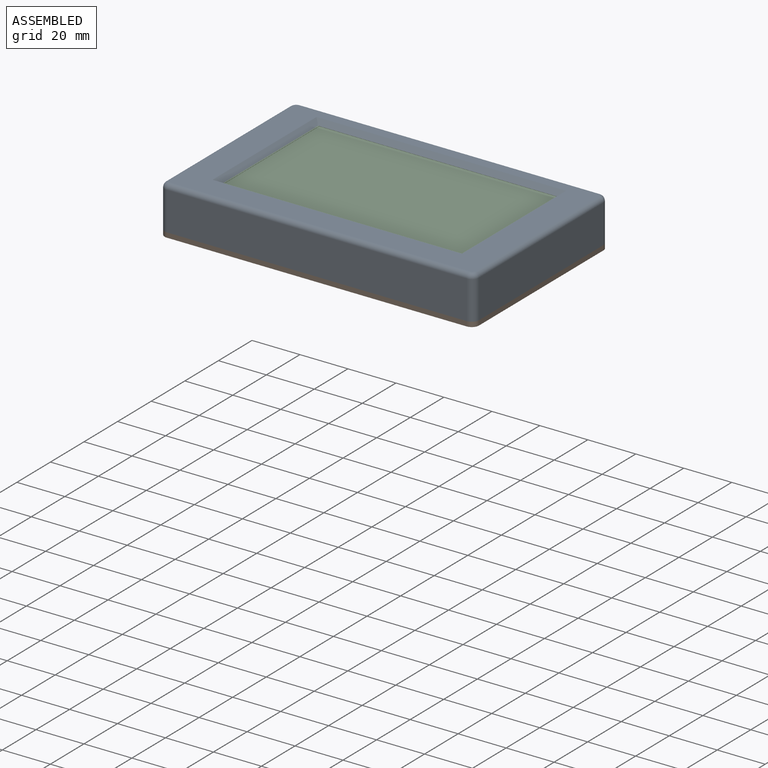
[diagram: assembled view]
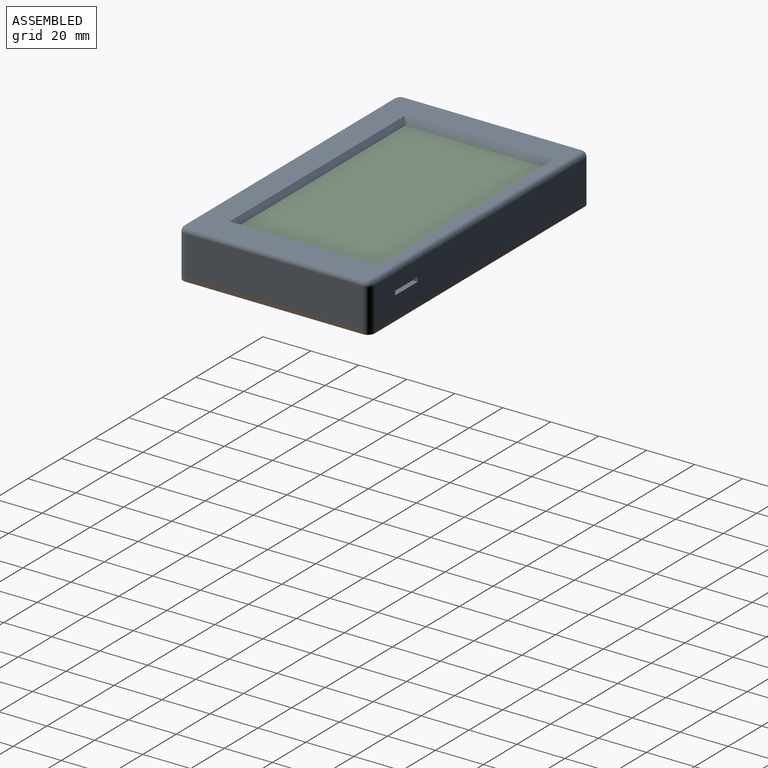
[diagram: assembled view, second angle]
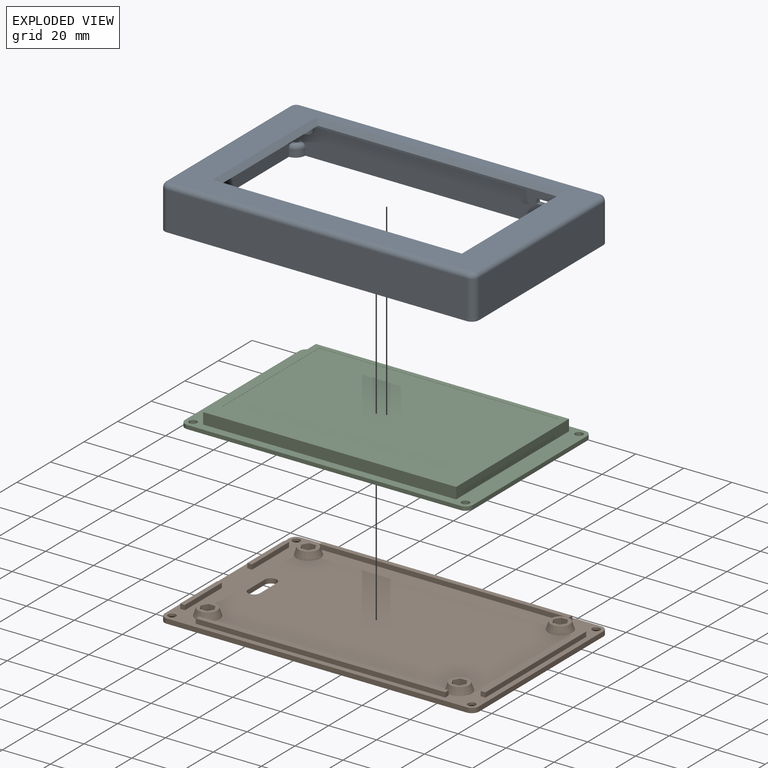
[diagram: exploded view]
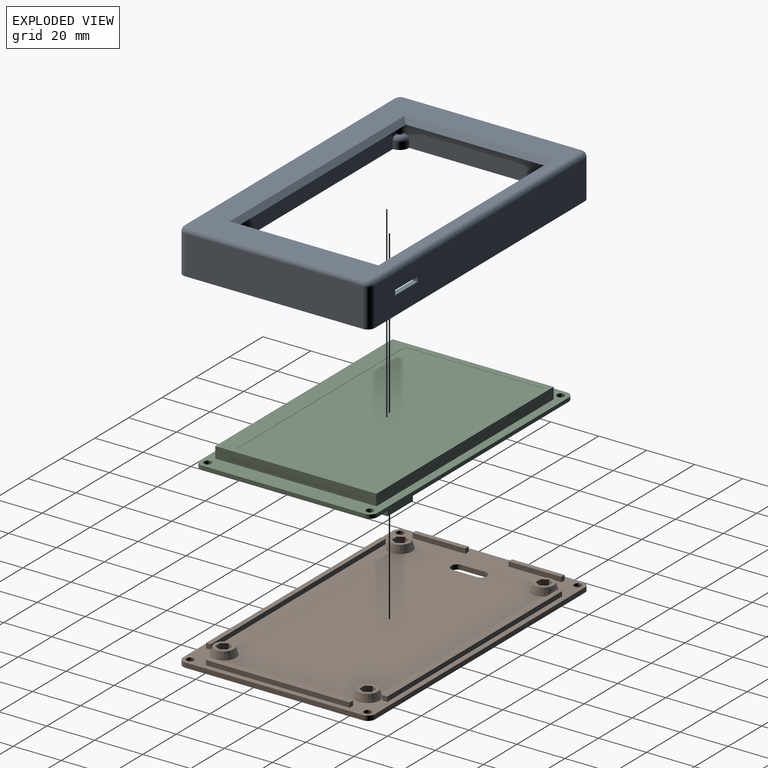
[diagram: exploded view, second angle]
ASSEMBLY  parts=3 mates=2
PART A: 82 faces, bbox 131x80x18 mm
  f0: plane 0.52x0.29mm, normal (0,0,1), area 0.1mm2, adj f67,f70,f81
  f1: plane 0.52x0.29mm, normal (0,0,1), area 0.1mm2, adj f66,f73,f75
  f2: plane 0.52x0.29mm, normal (0,0,1), area 0.1mm2, adj f69,f72,f77
  f3: plane 0.52x0.29mm, normal (0,0,1), area 0.1mm2, adj f68,f71,f79
  f4: plane 69.8x13mm, normal (-1,0,0), area 898.9mm2, adj f32,f45,f62,f64,f68,f69,f71,f72
  f5: plane 120.8x13mm, normal (0,1,0), area 1561.9mm2, adj f32,f45,f58,f64,f67,f68,f70,f71
  f6: plane 120.8x13mm, normal (0,-1,0), area 1534.9mm2, adj f32,f45,f46,f47,f48,f49,f60,f62
  f7: plane 69.8x13mm, normal (1,0,0), area 898.9mm2, adj f32,f45,f58,f60,f66,f67,f70,f73
  f8: plane 127x76mm, normal (0,0,1), area 3203.1mm2, adj f33,f34,f35,f36,f37,f38,f39,f40
  f9: plane 122.8x71.8mm, normal (0,0,-1), area 2943.3mm2, adj f11,f15,f19,f23,f26,f27,f28,f29
  f10: cylinder r=1mm len=4.7mm, axis (0,0,1), area 29.5mm2, adj f12,f13
  f11: cylinder r=2.5mm len=5mm, axis (0,0,1), area 73.8mm2, adj f9,f12
  f12: plane 5x5mm, normal (0,0,-1), area 16.5mm2, adj f10,f11
  f13: plane 2x2mm, normal (0,0,-1), area 3.1mm2, adj f10
  f14: cylinder r=1mm len=4.7mm, axis (0,0,1), area 29.5mm2, adj f16,f17
  f15: cylinder r=2.5mm len=5mm, axis (0,0,1), area 60.7mm2, adj f9,f16,f26,f29,f32
  f16: plane 5x5mm, normal (0,0,-1), area 16.5mm2, adj f14,f15
  f17: plane 2x2mm, normal (0,0,-1), area 3.1mm2, adj f14
  f18: cylinder r=1mm len=4.7mm, axis (0,0,1), area 29.5mm2, adj f20,f21
  f19: cylinder r=2.5mm len=5mm, axis (0,0,1), area 60.7mm2, adj f9,f20,f26,f27,f32
  f20: plane 5x5mm, normal (0,0,-1), area 16.5mm2, adj f18,f19
  f21: plane 2x2mm, normal (0,0,-1), area 3.1mm2, adj f18
  f22: cylinder r=1mm len=4.7mm, axis (0,0,1), area 29.5mm2, adj f24,f25
  f23: cylinder r=2.5mm len=5mm, axis (0,0,1), area 73.8mm2, adj f9,f24
  f24: plane 5x5mm, normal (0,0,-1), area 16.5mm2, adj f22,f23
  f25: plane 2x2mm, normal (0,0,-1), area 3.1mm2, adj f22
  f26: plane 109.76x3mm, normal (0,-1,0), area 329.3mm2, adj f9,f15,f19,f32
  f27: plane 3x2.18mm, normal (0,-1,0), area 6.5mm2, adj f9,f19,f30,f32
  f28: plane 71.8x3mm, normal (1,0,0), area 215.4mm2, adj f9,f29,f31,f32
  f29: plane 3.18x3mm, normal (0,-1,0), area 9.5mm2, adj f9,f15,f28,f32
  f30: plane 71.8x3mm, normal (-1,0,0), area 215.4mm2, adj f9,f27,f31,f32
  f31: plane 122.8x3mm, normal (0,1,0), area 368.4mm2, adj f9,f28,f30,f32
  f32: plane 126.8x75.8mm, normal (0,0,-1), area 781.9mm2, adj f4,f5,f6,f7,f15,f19,f26,f27
  f33: plane 62x2mm, normal (-0.71,0,0.71), area 169.7mm2, adj f8,f9,f34,f35
  f34: plane 104x2mm, normal (0,-0.71,0.71), area 288.5mm2, adj f8,f9,f33,f36
  f35: plane 104x2mm, normal (0,0.71,0.71), area 288.5mm2, adj f8,f9,f33,f36
  f36: plane 62x2mm, normal (0.71,0,0.71), area 169.7mm2, adj f8,f9,f34,f35
  f37: cylinder r=2mm len=125mm, axis (-1,0,0), area 392.7mm2, adj f8,f41,f51,f57
  f38: cylinder r=2mm len=74mm, axis (0,-1,0), area 232.5mm2, adj f8,f44,f51,f53
  f39: cylinder r=2mm len=74mm, axis (0,1,0), area 232.5mm2, adj f8,f42,f55,f57
  f40: cylinder r=2mm len=125mm, axis (1,0,0), area 392.7mm2, adj f8,f43,f53,f55
  f41: plane 125x16mm, normal (0,-1,0), area 2000mm2, adj f37,f45,f50,f56
  f42: plane 74x16mm, normal (-1,0,0), area 1184mm2, adj f39,f45,f54,f56
  f43: plane 125x16mm, normal (0,1,0), area 1973mm2, adj f40,f45,f46,f47,f48,f49,f52,f54
  f44: plane 74x16mm, normal (1,0,0), area 1184mm2, adj f38,f45,f50,f52
  f45: plane 131x80mm, normal (0,0,-1), area 898.5mm2, adj f4,f5,f6,f7,f41,f42,f43,f44
  f46: plane 2.1x2mm, normal (-1,0,0), area 4.2mm2, adj f6,f43,f47,f49
  f47: plane 13.5x2.1mm, normal (0,0,1), area 28.4mm2, adj f6,f43,f46,f48
  f48: plane 2.1x2mm, normal (1,0,0), area 4.2mm2, adj f6,f43,f47,f49
  f49: plane 13.5x2.1mm, normal (0,0,-1), area 28.4mm2, adj f6,f43,f46,f48
  f50: cylinder r=3mm len=16mm, axis (0,0,1), area 75.4mm2, adj f41,f44,f45,f51
  f51: torus R=1mm, axis (0,0,1), area 11.2mm2, adj f8,f37,f38,f50
  f52: cylinder r=3mm len=16mm, axis (0,0,-1), area 75.4mm2, adj f43,f44,f45,f53
  f53: torus R=1mm, axis (0,0,1), area 11.2mm2, adj f8,f38,f40,f52
  f54: cylinder r=3mm len=16mm, axis (0,0,1), area 75.4mm2, adj f42,f43,f45,f55
  f55: torus R=1mm, axis (0,0,1), area 11.2mm2, adj f8,f39,f40,f54
  f56: cylinder r=3mm len=16mm, axis (0,0,-1), area 75.4mm2, adj f41,f42,f45,f57
  f57: torus R=1mm, axis (0,0,1), area 11.2mm2, adj f8,f37,f39,f56
  f58: cylinder r=4mm len=4mm, axis (0,0,-1), area 18.8mm2, adj f5,f7,f45,f70
  f59: plane 0.52x0.29mm, normal (0,0,1), area 0.1mm2, adj f67,f70,f81
  f60: cylinder r=4mm len=4mm, axis (0,0,-1), area 18.8mm2, adj f6,f7,f45,f73
  f61: plane 0.52x0.29mm, normal (0,0,1), area 0.1mm2, adj f66,f73,f75
  f62: cylinder r=4mm len=4mm, axis (0,0,-1), area 18.8mm2, adj f4,f6,f45,f72
  f63: plane 0.52x0.29mm, normal (0,0,1), area 0.1mm2, adj f69,f72,f77
  f64: cylinder r=4mm len=4mm, axis (0,0,-1), area 18.8mm2, adj f4,f5,f45,f71
  f65: plane 0.52x0.29mm, normal (0,0,1), area 0.1mm2, adj f68,f71,f79
  f66: cylinder r=3mm len=8.27mm, axis (0,0,-1), area 37.9mm2, adj f1,f6,f7,f32,f61,f73,f74
  f67: cylinder r=3mm len=8.27mm, axis (0,0,1), area 37.9mm2, adj f0,f5,f7,f32,f59,f70,f80
  f68: cylinder r=3mm len=8.27mm, axis (0,0,-1), area 37.9mm2, adj f3,f4,f5,f32,f65,f71,f78
  f69: cylinder r=3mm len=8.27mm, axis (0,0,1), area 37.9mm2, adj f2,f4,f6,f32,f63,f72,f76
  f70: torus R=2mm, axis (0,0,-1), area 15.7mm2, adj f0,f5,f7,f58,f59,f67,f81
  f71: torus R=2mm, axis (0,0,-1), area 15.7mm2, adj f3,f4,f5,f64,f65,f68,f79
  f72: torus R=2mm, axis (0,0,-1), area 15.7mm2, adj f2,f4,f6,f62,f63,f69,f77
  f73: torus R=2mm, axis (0,0,-1), area 15.7mm2, adj f1,f6,f7,f60,f61,f66,f75
  f74: plane 1.8x1.8mm, normal (0,0,-1), area 1.6mm2, adj f66,f75
  f75: cylinder r=1mm len=5mm, axis (0,0,-1), area 31.4mm2, adj f1,f45,f61,f73,f74
  f76: plane 1.8x1.8mm, normal (0,0,-1), area 1.6mm2, adj f69,f77
  f77: cylinder r=1mm len=5mm, axis (0,0,-1), area 31.4mm2, adj f2,f45,f63,f72,f76
  f78: plane 1.8x1.8mm, normal (0,0,-1), area 1.6mm2, adj f68,f79
  f79: cylinder r=1mm len=5mm, axis (0,0,-1), area 31.4mm2, adj f3,f45,f65,f71,f78
  f80: plane 1.8x1.8mm, normal (0,0,-1), area 1.6mm2, adj f67,f81
  f81: cylinder r=1mm len=5mm, axis (0,0,-1), area 31.4mm2, adj f0,f45,f59,f70,f80
PART B: 87 faces, bbox 131x80x5 mm
  f0: plane 131x80mm, normal (0,0,1), area 9432.3mm2, adj f2,f3,f4,f5,f6,f7,f8,f9
  f1: plane 131x80mm, normal (0,0,-1), area 10279.2mm2, adj f2,f3,f4,f5,f6,f7,f8,f9
  f2: plane 74x2mm, normal (1,0,0), area 148mm2, adj f0,f1,f6,f9
  f3: plane 125x2mm, normal (0,1,0), area 250mm2, adj f0,f1,f6,f7
  f4: plane 74x2mm, normal (-1,0,0), area 148mm2, adj f0,f1,f7,f8
  f5: plane 125x2mm, normal (0,-1,0), area 250mm2, adj f0,f1,f8,f9
  f6: cylinder r=3mm len=3mm, axis (0,0,1), area 9.4mm2, adj f0,f1,f2,f3
  f7: cylinder r=3mm len=3mm, axis (0,0,-1), area 9.4mm2, adj f0,f1,f3,f4
  f8: cylinder r=3mm len=3mm, axis (0,0,1), area 9.4mm2, adj f0,f1,f4,f5
  f9: cylinder r=3mm len=3mm, axis (0,0,-1), area 9.4mm2, adj f0,f1,f2,f5
  f10: plane 10x2mm, normal (-1,0,0), area 20mm2, adj f0,f1,f11,f12
  f11: cylinder r=2.5mm len=5mm, axis (0,0,-1), area 15.7mm2, adj f0,f1,f10,f13
  f12: cylinder r=2.5mm len=5mm, axis (0,0,-1), area 15.7mm2, adj f0,f1,f10,f13
  f13: plane 10x2mm, normal (1,0,0), area 20mm2, adj f0,f1,f11,f12
  f14: cylinder r=1.6mm len=3.2mm, axis (0,0,-1), area 10.1mm2, adj f0,f44
  f15: cylinder r=1.6mm len=3.2mm, axis (0,0,-1), area 10.1mm2, adj f0,f43
  f16: cylinder r=1.6mm len=3.2mm, axis (0,0,-1), area 10.1mm2, adj f0,f46
  f17: cylinder r=1.6mm len=3.2mm, axis (0,0,-1), area 10.1mm2, adj f0,f45
  f18: plane 2x2mm, normal (0,-1,0), area 4mm2, adj f0,f19,f21,f22
  f19: plane 60x2mm, normal (1,0,0), area 120mm2, adj f0,f18,f20,f22
  f20: plane 2x2mm, normal (0,1,0), area 4mm2, adj f0,f19,f21,f22
  f21: plane 60x2mm, normal (-1,0,0), area 120mm2, adj f0,f18,f20,f22
  f22: plane 60x2mm, normal (0,0,1), area 120mm2, adj f18,f19,f20,f21
  f23: plane 22x2mm, normal (-1,0,0), area 44mm2, adj f0,f24,f26,f27
  f24: plane 2x2mm, normal (0,-1,0), area 4mm2, adj f0,f23,f25,f27
  f25: plane 22x2mm, normal (1,0,0), area 44mm2, adj f0,f24,f26,f27
  f26: plane 2x2mm, normal (0,1,0), area 4mm2, adj f0,f23,f25,f27
  f27: plane 22x2mm, normal (0,0,1), area 44mm2, adj f23,f24,f25,f26
  f28: plane 22x2mm, normal (-1,0,0), area 44mm2, adj f0,f29,f31,f32
  f29: plane 2x2mm, normal (0,-1,0), area 4mm2, adj f0,f28,f30,f32
  f30: plane 22x2mm, normal (1,0,0), area 44mm2, adj f0,f29,f31,f32
  f31: plane 2x2mm, normal (0,1,0), area 4mm2, adj f0,f28,f30,f32
  f32: plane 22x2mm, normal (0,0,1), area 44mm2, adj f28,f29,f30,f31
  f33: plane 104x2mm, normal (0,1,0), area 208mm2, adj f0,f34,f36,f37
  f34: plane 2x2mm, normal (-1,0,0), area 4mm2, adj f0,f33,f35,f37
  f35: plane 104x2mm, normal (0,-1,0), area 208mm2, adj f0,f34,f36,f37
  f36: plane 2x2mm, normal (1,0,0), area 4mm2, adj f0,f33,f35,f37
  f37: plane 104x2mm, normal (0,0,1), area 208mm2, adj f33,f34,f35,f36
  f38: plane 2x2mm, normal (-1,0,0), area 4mm2, adj f0,f39,f41,f42
  f39: plane 104x2mm, normal (0,-1,0), area 208mm2, adj f0,f38,f40,f42
  f40: plane 2x2mm, normal (1,0,0), area 4mm2, adj f0,f39,f41,f42
  f41: plane 104x2mm, normal (0,1,0), area 208mm2, adj f0,f38,f40,f42
  f42: plane 104x2mm, normal (0,0,1), area 208mm2, adj f38,f39,f40,f41
  f43: cone r=1.6mm half-angle=45deg, axis (0,0,-1), area 18.7mm2, adj f1,f15
  f44: cone r=1.6mm half-angle=45deg, axis (0,0,-1), area 18.7mm2, adj f1,f14
  f45: cone r=1.6mm half-angle=45deg, axis (0,0,-1), area 18.7mm2, adj f1,f17
  f46: cone r=1.6mm half-angle=45deg, axis (0,0,-1), area 18.7mm2, adj f1,f16
  f47: plane 3x2.89mm, normal (0,-1,0), area 8.7mm2, adj f48,f52,f53,f54
  f48: plane 3x2.5mm, normal (-0.87,-0.5,0), area 8.7mm2, adj f47,f49,f53,f54
  f49: plane 3x2.5mm, normal (-0.87,0.5,0), area 8.7mm2, adj f48,f50,f53,f54
  f50: plane 3x2.89mm, normal (0,1,0), area 8.7mm2, adj f49,f51,f53,f54
  f51: plane 3x2.5mm, normal (0.87,0.5,0), area 8.7mm2, adj f50,f52,f53,f54
  f52: plane 3x2.5mm, normal (0.87,-0.5,0), area 8.7mm2, adj f47,f51,f53,f54
  f53: plane 8x8mm, normal (0,0,1), area 28.6mm2, adj f47,f48,f49,f50,f51,f52,f85
  f54: plane 5.77x5mm, normal (0,0,1), area 12mm2, adj f47,f48,f49,f50,f51,f52,f79
  f55: plane 3x2.5mm, normal (0.87,-0.5,0), area 8.7mm2, adj f56,f60,f61,f62
  f56: plane 3x2.89mm, normal (0,-1,0), area 8.7mm2, adj f55,f57,f61,f62
  f57: plane 3x2.5mm, normal (-0.87,-0.5,0), area 8.7mm2, adj f56,f58,f61,f62
  f58: plane 3x2.5mm, normal (-0.87,0.5,0), area 8.7mm2, adj f57,f59,f61,f62
  f59: plane 3x2.89mm, normal (0,1,0), area 8.7mm2, adj f58,f60,f61,f62
  f60: plane 3x2.5mm, normal (0.87,0.5,0), area 8.7mm2, adj f55,f59,f61,f62
  f61: plane 8x8mm, normal (0,0,1), area 28.6mm2, adj f55,f56,f57,f58,f59,f60,f86
  f62: plane 5.77x5mm, normal (0,0,1), area 12mm2, adj f55,f56,f57,f58,f59,f60,f82
  f63: plane 3x2.5mm, normal (-0.87,0.5,0), area 8.7mm2, adj f64,f68,f69,f70
  f64: plane 3x2.89mm, normal (0,1,0), area 8.7mm2, adj f63,f65,f69,f70
  f65: plane 3x2.5mm, normal (0.87,0.5,0), area 8.7mm2, adj f64,f66,f69,f70
  f66: plane 3x2.5mm, normal (0.87,-0.5,0), area 8.7mm2, adj f65,f67,f69,f70
  f67: plane 3x2.89mm, normal (0,-1,0), area 8.7mm2, adj f66,f68,f69,f70
  f68: plane 3x2.5mm, normal (-0.87,-0.5,0), area 8.7mm2, adj f63,f67,f69,f70
  f69: plane 8x8mm, normal (0,0,1), area 28.6mm2, adj f63,f64,f65,f66,f67,f68,f84
  f70: plane 5.77x5mm, normal (0,0,1), area 12mm2, adj f63,f64,f65,f66,f67,f68,f80
  f71: plane 3x2.89mm, normal (0,1,0), area 8.7mm2, adj f72,f76,f77,f78
  f72: plane 3x2.5mm, normal (0.87,0.5,0), area 8.7mm2, adj f71,f73,f77,f78
  f73: plane 3x2.5mm, normal (0.87,-0.5,0), area 8.7mm2, adj f72,f74,f77,f78
  f74: plane 3x2.89mm, normal (0,-1,0), area 8.7mm2, adj f73,f75,f77,f78
  f75: plane 3x2.5mm, normal (-0.87,-0.5,0), area 8.7mm2, adj f74,f76,f77,f78
  f76: plane 3x2.5mm, normal (-0.87,0.5,0), area 8.7mm2, adj f71,f75,f77,f78
  f77: plane 8x8mm, normal (0,0,1), area 28.6mm2, adj f71,f72,f73,f74,f75,f76,f83
  f78: plane 5.77x5mm, normal (0,0,1), area 12mm2, adj f71,f72,f73,f74,f75,f76,f81
  f79: cylinder r=1.75mm len=3.5mm, axis (0,0,1), area 22mm2, adj f1,f54
  f80: cylinder r=1.75mm len=3.5mm, axis (0,0,1), area 22mm2, adj f1,f70
  f81: cylinder r=1.75mm len=3.5mm, axis (0,0,1), area 22mm2, adj f1,f78
  f82: cylinder r=1.75mm len=3.5mm, axis (0,0,1), area 22mm2, adj f1,f62
  f83: cone r=4mm half-angle=18.4deg, axis (0,0,-1), area 89.4mm2, adj f0,f77
  f84: cone r=4mm half-angle=18.4deg, axis (0,0,-1), area 89.4mm2, adj f0,f69
  f85: cone r=4mm half-angle=18.4deg, axis (0,0,-1), area 89.4mm2, adj f0,f53
  f86: cone r=4mm half-angle=18.4deg, axis (0,0,-1), area 89.4mm2, adj f0,f61
PART C: 32 faces, bbox 120x74x12.3 mm
  f0: plane 68x1.6mm, normal (1,0,0), area 108.8mm2, adj f8,f9,f28,f31
  f1: plane 114x3.6mm, normal (0,1,0), area 212.4mm2, adj f8,f9,f20,f21,f23,f28,f29
  f2: plane 68x7.6mm, normal (-1,0,0), area 198.8mm2, adj f8,f9,f24,f26,f27,f29,f30
  f3: cylinder r=1.6mm len=3.2mm, axis (0,0,-1), area 16.1mm2, adj f8,f9
  f4: cylinder r=1.6mm len=3.2mm, axis (0,0,-1), area 16.1mm2, adj f8,f9
  f5: cylinder r=1.6mm len=3.2mm, axis (0,0,-1), area 16.1mm2, adj f8,f9
  f6: cylinder r=1.6mm len=3.2mm, axis (0,0,-1), area 16.1mm2, adj f8,f9
  f7: plane 114x1.6mm, normal (0,-1,0), area 182.4mm2, adj f8,f9,f30,f31
  f8: plane 120x74mm, normal (0,0,1), area 1750.5mm2, adj f0,f1,f2,f3,f4,f5,f6,f7
  f9: plane 120x74mm, normal (0,0,-1), area 8495.1mm2, adj f0,f1,f2,f3,f4,f5,f6,f7
  f10: plane 67.2x4.7mm, normal (-1,0,0), area 315.8mm2, adj f8,f11,f13,f14
  f11: plane 105.5x4.7mm, normal (0,-1,0), area 495.9mm2, adj f8,f10,f12,f14
  f12: plane 67.2x4.7mm, normal (1,0,0), area 315.8mm2, adj f8,f11,f13,f14
  f13: plane 105.5x4.7mm, normal (0,1,0), area 495.9mm2, adj f8,f10,f12,f14
  f14: plane 105.5x67.2mm, normal (0,0,1), area 1289.6mm2, adj f10,f11,f12,f13,f15,f16,f17,f18
  f15: plane 58x0.1mm, normal (1,0,0), area 5.8mm2, adj f14,f16,f18,f19
  f16: plane 100x0.1mm, normal (0,1,0), area 10mm2, adj f14,f15,f17,f19
  f17: plane 58x0.1mm, normal (-1,0,0), area 5.8mm2, adj f14,f16,f18,f19
  f18: plane 100x0.1mm, normal (0,-1,0), area 10mm2, adj f14,f15,f17,f19
  f19: plane 100x58mm, normal (0,0,1), area 5800mm2, adj f15,f16,f17,f18
  f20: plane 15x2mm, normal (-1,0,0), area 30mm2, adj f1,f9,f22,f23
  f21: plane 15x2mm, normal (1,0,0), area 30mm2, adj f1,f9,f22,f23
  f22: plane 15x2mm, normal (0,-1,0), area 30mm2, adj f9,f20,f21,f23
  f23: plane 15x15mm, normal (0,0,-1), area 225mm2, adj f1,f20,f21,f22
  f24: plane 8x6mm, normal (0,1,0), area 48mm2, adj f2,f9,f25,f27
  f25: plane 15x6mm, normal (1,0,0), area 90mm2, adj f9,f24,f26,f27
  f26: plane 8x6mm, normal (0,-1,0), area 48mm2, adj f2,f9,f25,f27
  f27: plane 15x8mm, normal (0,0,-1), area 120mm2, adj f2,f24,f25,f26
  f28: cylinder r=3mm len=3mm, axis (0,0,-1), area 7.5mm2, adj f0,f1,f8,f9
  f29: cylinder r=3mm len=3mm, axis (0,0,1), area 7.5mm2, adj f1,f2,f8,f9
  f30: cylinder r=3mm len=3mm, axis (0,0,-1), area 7.5mm2, adj f2,f7,f8,f9
  f31: cylinder r=3mm len=3mm, axis (0,0,1), area 7.5mm2, adj f0,f7,f8,f9
PLACE A t=(32.95,-28.38,55.12)mm
PLACE B t=(32.95,-28.38,55.12)mm
PLACE C t=(33.45,-27.88,55.12)mm
MATE fastened B.f6 <-> A.f52  axis (0,0,1) through (95.45,8.62,45.42)mm
MATE fastened C.f4 <-> A.f10  axis (0,0,1) through (-23.35,-61.68,56.72)mm
